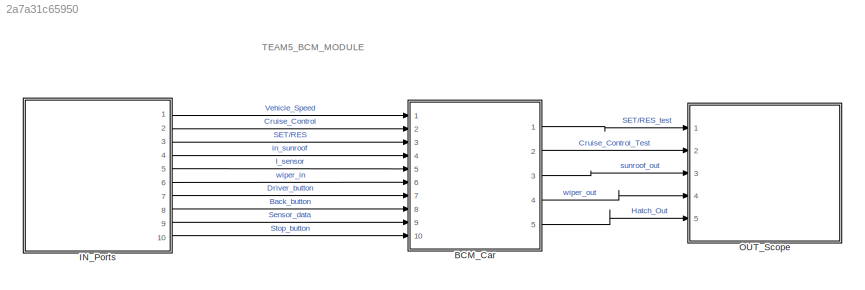
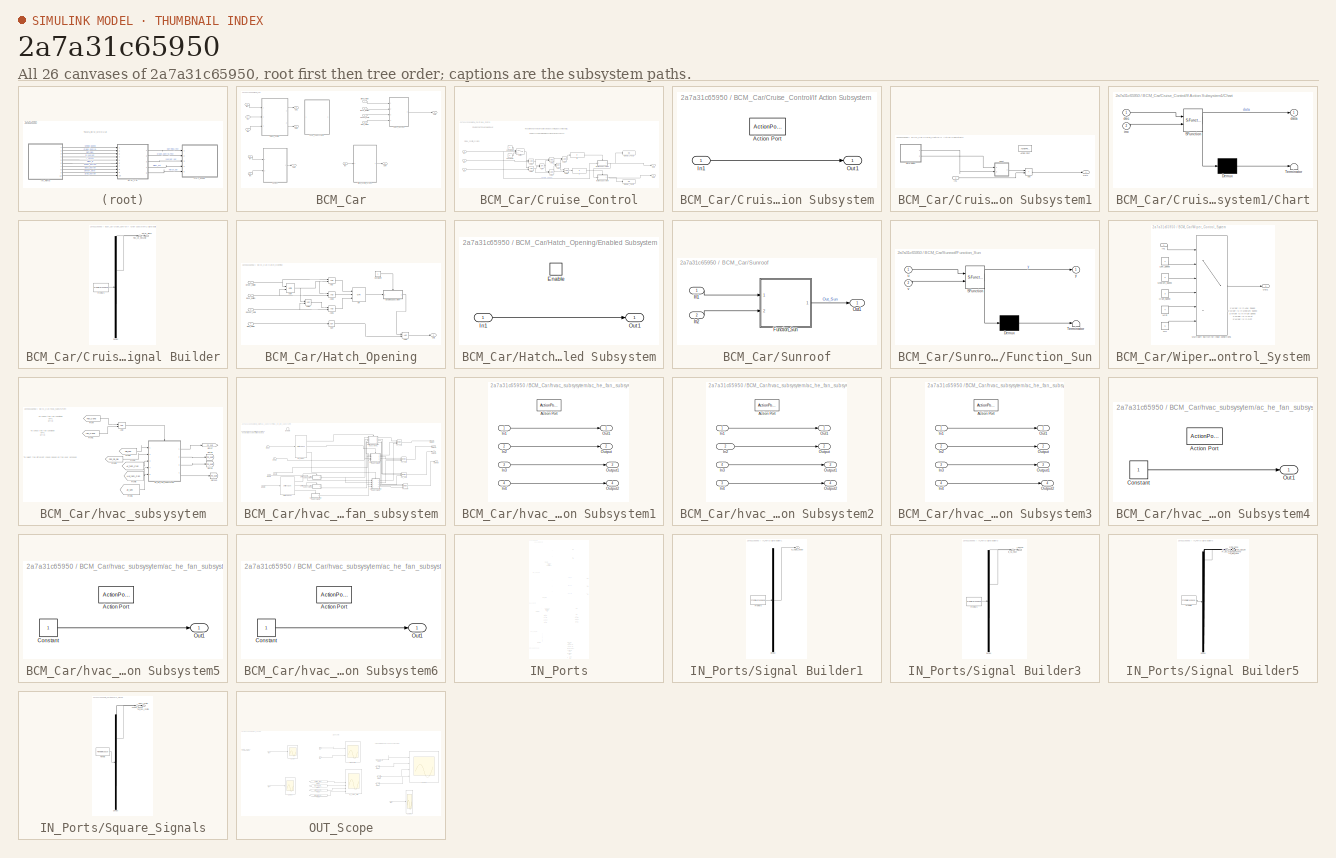
[diagram: thumbnail index - all 26 canvases of the model, root first then tree order]
MODEL slx_2a7a31c65950
KIND model
CONFIG AbsTol = auto
CONFIG EnableMultiTasking = off
CONFIG FixedStep = auto
CONFIG MaxStep = auto
CONFIG MinStep = auto
CONFIG RelTol = 1e-3
CONFIG SampleTimeConstraint = Unconstrained
CONFIG Solver = VariableStepAuto
CONFIG SolverName = VariableStepAuto
CONFIG StartTime = 0.0
CONFIG StopTime = 100
BLOCK [SubSystem] BCM_Car
  Ports = [10, 5]
  RequestExecContextInheritance = off
BLOCK [Inport] BCM_Car/Back_Button
  Port = 8
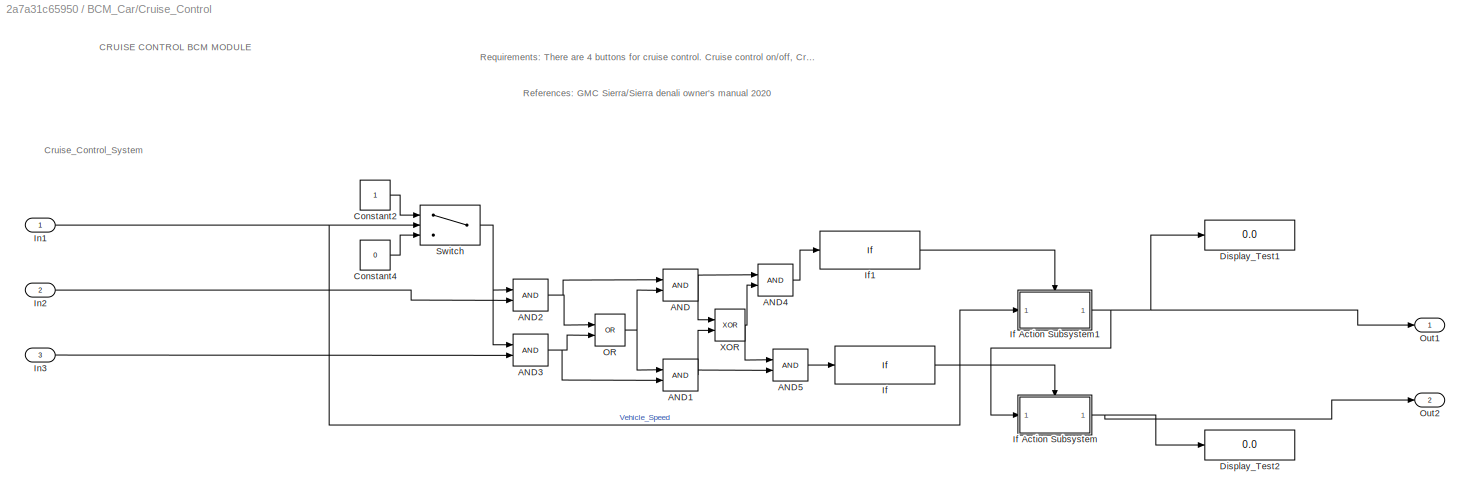
BLOCK [SubSystem] BCM_Car/Cruise_Control
  Ports = [3, 2]
  RequestExecContextInheritance = off
BLOCK [Logic] BCM_Car/Cruise_Control/AND
  AllPortsSameDT = off
  IconShape = distinctive
  OutDataTypeStr = boolean
  Ports = [2, 1]
BLOCK [Logic] BCM_Car/Cruise_Control/AND1
  AllPortsSameDT = off
  IconShape = distinctive
  OutDataTypeStr = boolean
  Ports = [2, 1]
BLOCK [Logic] BCM_Car/Cruise_Control/AND2
  AllPortsSameDT = off
  IconShape = distinctive
  OutDataTypeStr = boolean
  Ports = [2, 1]
BLOCK [Logic] BCM_Car/Cruise_Control/AND3
  AllPortsSameDT = off
  IconShape = distinctive
  OutDataTypeStr = boolean
  Ports = [2, 1]
BLOCK [Logic] BCM_Car/Cruise_Control/AND4
  AllPortsSameDT = off
  IconShape = distinctive
  OutDataTypeStr = boolean
  Ports = [2, 1]
BLOCK [Logic] BCM_Car/Cruise_Control/AND5
  AllPortsSameDT = off
  IconShape = distinctive
  OutDataTypeStr = boolean
  Ports = [2, 1]
BLOCK [Constant] BCM_Car/Cruise_Control/Constant2
BLOCK [Constant] BCM_Car/Cruise_Control/Constant4
  Value = 0
BLOCK [Display] BCM_Car/Cruise_Control/Display_Test1
  Decimation = 1
  Ports = [1]
BLOCK [Display] BCM_Car/Cruise_Control/Display_Test2
  Decimation = 1
  Ports = [1]
BLOCK [If] BCM_Car/Cruise_Control/If
  IfExpression = u1 == 1
  Ports = [1, 1]
  ShowElse = off
BLOCK [SubSystem] BCM_Car/Cruise_Control/If Action Subsystem
  Ports = [1, 1, 0, 0, 0, 0, 0, 1]
  RequestExecContextInheritance = off
  TreatAsAtomicUnit = on
BLOCK [ActionPort] BCM_Car/Cruise_Control/If Action Subsystem/Action Port
  ActionPortLabel = if(u1 == 1)
BLOCK [Inport] BCM_Car/Cruise_Control/If Action Subsystem/In1
BLOCK [Outport] BCM_Car/Cruise_Control/If Action Subsystem/Out1
BLOCK [SubSystem] BCM_Car/Cruise_Control/If Action Subsystem1
  Ports = [1, 1, 0, 0, 0, 0, 0, 1]
  RequestExecContextInheritance = off
  TreatAsAtomicUnit = on
BLOCK [ActionPort] BCM_Car/Cruise_Control/If Action Subsystem1/Action Port
  ActionPortLabel = if(u1 == 1)
BLOCK [Sum] BCM_Car/Cruise_Control/If Action Subsystem1/Add
  IconShape = rectangular
  Ports = [2, 1]
BLOCK [SubSystem] BCM_Car/Cruise_Control/If Action Subsystem1/Chart
  ErrorFcn = Stateflow.Translate.translate
  PermitHierarchicalResolution = ExplicitOnly
  Ports = [2, 1]
  RequestExecContextInheritance = off
  SFBlockType = Chart
  TreatAsAtomicUnit = on
BLOCK [Demux] BCM_Car/Cruise_Control/If Action Subsystem1/Chart/ Demux 
  Outputs = 1
  Ports = [1, 1]
BLOCK [S-Function] BCM_Car/Cruise_Control/If Action Subsystem1/Chart/ SFunction 
  EnableBusSupport = off
  FunctionName = sf_sfun
  PortCounts = [2 2]
  Ports = [2, 2]
  SFcnIsStateOwnerBlock = off
  SFunctionDeploymentMode = off
  Tag = Stateflow S-Function 1
BLOCK [Terminator] BCM_Car/Cruise_Control/If Action Subsystem1/Chart/ Terminator 
BLOCK [Outport] BCM_Car/Cruise_Control/If Action Subsystem1/Chart/data
BLOCK [Inport] BCM_Car/Cruise_Control/If Action Subsystem1/Chart/dec
BLOCK [Inport] BCM_Car/Cruise_Control/If Action Subsystem1/Chart/inc
  Port = 2
BLOCK [Inport] BCM_Car/Cruise_Control/If Action Subsystem1/In1
BLOCK [Outport] BCM_Car/Cruise_Control/If Action Subsystem1/Out1
BLOCK [SubSystem] BCM_Car/Cruise_Control/If Action Subsystem1/Signal Builder
  ClipboardFcn = sigbuilder_block('clipboard');
  CloseFcn = sigbuilder_block('close');
  ContinueFcn = sigbuilder_block('continue');
  CopyFcn = sigbuilder_block('copy');
  DeleteFcn = sigbuilder_block('delete');
  LoadFcn = sigbuilder_block('load');
  MaskHideContents = on
  ModelCloseFcn = sigbuilder_block('modelClose');
  NameChangeFcn = sigbuilder_block('namechange');
  OpenFcn = sigbuilder_block('open',[0.75 30.75 718.5 715.5 ]);
  PauseFcn = sigbuilder_block('pause');
  Ports = [0, 2]
  PreSaveFcn = sigbuilder_block('preSave');
  RequestExecContextInheritance = off
  StartFcn = sigbuilder_block('start');
  StopFcn = sigbuilder_block('stop');
  Tag = STV Subsys
BLOCK [Demux] BCM_Car/Cruise_Control/If Action Subsystem1/Signal Builder/Demux
  DisplayOption = none
  Outputs = 2
  Ports = [1, 2]
  Tag = STV Demux
BLOCK [FromWorkspace] BCM_Car/Cruise_Control/If Action Subsystem1/Signal Builder/FromWs
  Tag = STV FromWs
  VariableName = tuvar
BLOCK [Outport] BCM_Car/Cruise_Control/If Action Subsystem1/Signal Builder/Plus_Or_Resume
  Tag = STV Outport
BLOCK [Outport] BCM_Car/Cruise_Control/If Action Subsystem1/Signal Builder/Set_Or_Minus
  Port = 2
  Tag = STV Outport
BLOCK [If] BCM_Car/Cruise_Control/If1
  IfExpression = u1 == 1
  Ports = [1, 1]
  ShowElse = off
BLOCK [Inport] BCM_Car/Cruise_Control/In1
BLOCK [Inport] BCM_Car/Cruise_Control/In2
  Port = 2
BLOCK [Inport] BCM_Car/Cruise_Control/In3
  Port = 3
BLOCK [Logic] BCM_Car/Cruise_Control/OR
  AllPortsSameDT = off
  IconShape = distinctive
  Operator = OR
  OutDataTypeStr = boolean
  Ports = [2, 1]
BLOCK [Outport] BCM_Car/Cruise_Control/Out1
BLOCK [Outport] BCM_Car/Cruise_Control/Out2
  Port = 2
BLOCK [Switch] BCM_Car/Cruise_Control/Switch
  InputSameDT = off
  SaturateOnIntegerOverflow = off
  Threshold = 40
BLOCK [Logic] BCM_Car/Cruise_Control/XOR
  AllPortsSameDT = off
  IconShape = distinctive
  Operator = XOR
  OutDataTypeStr = boolean
  Ports = [2, 1]
BLOCK [Inport] BCM_Car/Driver_button
  Port = 7
BLOCK [SubSystem] BCM_Car/Hatch_Opening
  Ports = [4, 1]
  RequestExecContextInheritance = off
BLOCK [Logic] BCM_Car/Hatch_Opening/AND
  AllPortsSameDT = off
  IconShape = distinctive
  OutDataTypeStr = boolean
  Ports = [2, 1]
BLOCK [Logic] BCM_Car/Hatch_Opening/AND1
  AllPortsSameDT = off
  IconShape = distinctive
  OutDataTypeStr = boolean
  Ports = [2, 1]
BLOCK [Logic] BCM_Car/Hatch_Opening/AND2
  AllPortsSameDT = off
  IconShape = distinctive
  OutDataTypeStr = boolean
  Ports = [2, 1]
BLOCK [Logic] BCM_Car/Hatch_Opening/AND3
  AllPortsSameDT = off
  IconShape = distinctive
  OutDataTypeStr = boolean
  Ports = [2, 1]
BLOCK [Inport] BCM_Car/Hatch_Opening/Back_Button
  Port = 2
BLOCK [Constant] BCM_Car/Hatch_Opening/Constant4
BLOCK [Inport] BCM_Car/Hatch_Opening/Driver_button
BLOCK [SubSystem] BCM_Car/Hatch_Opening/Enabled Subsystem
  Ports = [1, 1, 1]
  RequestExecContextInheritance = off
  TreatAsAtomicUnit = on
BLOCK [EnablePort] BCM_Car/Hatch_Opening/Enabled Subsystem/Enable
  Ports = []
BLOCK [Inport] BCM_Car/Hatch_Opening/Enabled Subsystem/In1
BLOCK [Outport] BCM_Car/Hatch_Opening/Enabled Subsystem/Out1
BLOCK [Logic] BCM_Car/Hatch_Opening/NOT
  AllPortsSameDT = off
  IconShape = distinctive
  Operator = NOT
  OutDataTypeStr = boolean
  Ports = [1, 1]
BLOCK [Logic] BCM_Car/Hatch_Opening/OR
  AllPortsSameDT = off
  IconShape = distinctive
  Inputs = 3
  Operator = OR
  OutDataTypeStr = boolean
  Ports = [3, 1]
BLOCK [Outport] BCM_Car/Hatch_Opening/Out1
BLOCK [Inport] BCM_Car/Hatch_Opening/Senosr_data
  Port = 3
BLOCK [Inport] BCM_Car/Hatch_Opening/Stop_button
  Port = 4
BLOCK [Logic] BCM_Car/Hatch_Opening/XOR
  AllPortsSameDT = off
  IconShape = distinctive
  Operator = XOR
  OutDataTypeStr = boolean
  Ports = [2, 1]
BLOCK [Logic] BCM_Car/Hatch_Opening/XOR1
  AllPortsSameDT = off
  IconShape = distinctive
  Operator = XOR
  OutDataTypeStr = boolean
  Ports = [2, 1]
BLOCK [Inport] BCM_Car/In1
BLOCK [Inport] BCM_Car/In2
  Port = 2
BLOCK [Inport] BCM_Car/In3
  Port = 3
BLOCK [Inport] BCM_Car/In4
  Port = 4
BLOCK [Inport] BCM_Car/In5
  Port = 5
BLOCK [Inport] BCM_Car/In6
  Port = 6
BLOCK [Outport] BCM_Car/Out1
BLOCK [Outport] BCM_Car/Out2
  Port = 2
BLOCK [Outport] BCM_Car/Out3
  Port = 3
BLOCK [Outport] BCM_Car/Out4
  Port = 4
BLOCK [Outport] BCM_Car/Out5
  Port = 5
BLOCK [Inport] BCM_Car/Senosr_data
  Port = 9
BLOCK [Inport] BCM_Car/Stop_button
  Port = 10
BLOCK [SubSystem] BCM_Car/Sunroof
  Ports = [2, 1]
  RequestExecContextInheritance = off
BLOCK [SubSystem] BCM_Car/Sunroof/Function_Sun
  ErrorFcn = Stateflow.Translate.translate
  PermitHierarchicalResolution = ExplicitOnly
  Ports = [2, 1]
  RequestExecContextInheritance = off
  SFBlockType = MATLAB Function
  TreatAsAtomicUnit = on
BLOCK [Demux] BCM_Car/Sunroof/Function_Sun/ Demux 
  Outputs = 1
  Ports = [1, 1]
BLOCK [S-Function] BCM_Car/Sunroof/Function_Sun/ SFunction 
  EnableBusSupport = off
  FunctionName = sf_sfun
  PortCounts = [2 2]
  Ports = [2, 2]
  SFcnIsStateOwnerBlock = off
  SFunctionDeploymentMode = off
  Tag = Stateflow S-Function 3
BLOCK [Terminator] BCM_Car/Sunroof/Function_Sun/ Terminator 
BLOCK [Inport] BCM_Car/Sunroof/Function_Sun/u
BLOCK [Inport] BCM_Car/Sunroof/Function_Sun/v
  Port = 2
BLOCK [Outport] BCM_Car/Sunroof/Function_Sun/y
BLOCK [Inport] BCM_Car/Sunroof/In1
BLOCK [Inport] BCM_Car/Sunroof/In2
  Port = 2
BLOCK [Outport] BCM_Car/Sunroof/Out1
BLOCK [SubSystem] BCM_Car/Wiper_Control_System
  Ports = [1, 1]
  RequestExecContextInheritance = off
BLOCK [Constant] BCM_Car/Wiper_Control_System/High_Speed
  Value = 3
BLOCK [Inport] BCM_Car/Wiper_Control_System/In1
BLOCK [Constant] BCM_Car/Wiper_Control_System/Low_Speed
BLOCK [Constant] BCM_Car/Wiper_Control_System/Medium_Speed
  Value = 2
BLOCK [Constant] BCM_Car/Wiper_Control_System/Mist
  Value = 4
BLOCK [MultiPortSwitch] BCM_Car/Wiper_Control_System/Multiport Switch for input conditions
  DiagnosticForDefault = None
  InputSameDT = off
  Inputs = 5
  Ports = [6, 1]
  SaturateOnIntegerOverflow = off
BLOCK [Constant] BCM_Car/Wiper_Control_System/Off
  Value = 5
BLOCK [Outport] BCM_Car/Wiper_Control_System/Out1
BLOCK [SubSystem] BCM_Car/hvac_subsysytem
  Ports = []
  RequestExecContextInheritance = off
BLOCK [Logic] BCM_Car/hvac_subsysytem/AND
  AllPortsSameDT = off
  IconShape = distinctive
  OutDataTypeStr = boolean
  Ports = [2, 1]
BLOCK [From] BCM_Car/hvac_subsysytem/From
  GotoTag = Fan_Cond
  TagVisibility = global
BLOCK [From] BCM_Car/hvac_subsysytem/From1
  GotoTag = Ign_Cond
  TagVisibility = global
BLOCK [From] BCM_Car/hvac_subsysytem/From2
  GotoTag = Sel_cas
  TagVisibility = global
BLOCK [From] BCM_Car/hvac_subsysytem/From3
  GotoTag = Fan_Sp_Sel
  TagVisibility = global
BLOCK [From] BCM_Car/hvac_subsysytem/From4
  GotoTag = Ac_tem_Con
  TagVisibility = global
BLOCK [From] BCM_Car/hvac_subsysytem/From5
  GotoTag = He_tem_Con
  TagVisibility = global
BLOCK [From] BCM_Car/hvac_subsysytem/From6
  GotoTag = Air_Ven
  TagVisibility = global
BLOCK [Goto] BCM_Car/hvac_subsysytem/Goto10
  GotoTag = Po_out4
  TagVisibility = global
BLOCK [Goto] BCM_Car/hvac_subsysytem/Goto7
  GotoTag = Po_out1
  TagVisibility = global
BLOCK [Goto] BCM_Car/hvac_subsysytem/Goto8
  GotoTag = Po_out2
  TagVisibility = global
BLOCK [Goto] BCM_Car/hvac_subsysytem/Goto9
  GotoTag = Po_out3
  TagVisibility = global
BLOCK [SubSystem] BCM_Car/hvac_subsysytem/ac_he_fan_subsystem
  Ports = [5, 4, 1]
  RequestExecContextInheritance = off
BLOCK [EnablePort] BCM_Car/hvac_subsysytem/ac_he_fan_subsystem/Enable
  Ports = []
BLOCK [Inport] BCM_Car/hvac_subsysytem/ac_he_fan_subsystem/Input
BLOCK [Inport] BCM_Car/hvac_subsysytem/ac_he_fan_subsystem/Input1
  Port = 2
BLOCK [Inport] BCM_Car/hvac_subsysytem/ac_he_fan_subsystem/Input2
  Port = 3
BLOCK [Inport] BCM_Car/hvac_subsysytem/ac_he_fan_subsystem/Input3
  Port = 4
BLOCK [Inport] BCM_Car/hvac_subsysytem/ac_he_fan_subsystem/Input4
  Port = 5
BLOCK [Outport] BCM_Car/hvac_subsysytem/ac_he_fan_subsystem/Output
  IconDisplay = Port number and signal name
BLOCK [Outport] BCM_Car/hvac_subsysytem/ac_he_fan_subsystem/Output1
  IconDisplay = Port number and signal name
  Port = 2
BLOCK [Outport] BCM_Car/hvac_subsysytem/ac_he_fan_subsystem/Output2
  Port = 3
BLOCK [Outport] BCM_Car/hvac_subsysytem/ac_he_fan_subsystem/Output3
  Port = 4
BLOCK [Merge] BCM_Car/hvac_subsysytem/ac_he_fan_subsystem/Po_out1
  Inputs = 3
  Ports = [3, 1]
BLOCK [Merge] BCM_Car/hvac_subsysytem/ac_he_fan_subsystem/Po_out2
  Inputs = 3
  Ports = [3, 1]
BLOCK [Merge] BCM_Car/hvac_subsysytem/ac_he_fan_subsystem/Po_out3
  Inputs = 3
  Ports = [3, 1]
BLOCK [Merge] BCM_Car/hvac_subsysytem/ac_he_fan_subsystem/Po_out4
  Inputs = 3
  Ports = [3, 1]
BLOCK [SwitchCase] BCM_Car/hvac_subsysytem/ac_he_fan_subsystem/Sel_which 
  CaseConditions = {1,2,3}
  Ports = [1, 3]
  ShowDefaultCase = off
BLOCK [SubSystem] BCM_Car/hvac_subsysytem/ac_he_fan_subsystem/Switch Case Action Subsystem1
  Ports = [4, 4, 0, 0, 0, 0, 0, 1]
  RequestExecContextInheritance = off
  TreatAsAtomicUnit = on
BLOCK [ActionPort] BCM_Car/hvac_subsysytem/ac_he_fan_subsystem/Switch Case Action Subsystem1/Action Port
  ActionPortLabel = case [ 1 ]:
BLOCK [Inport] BCM_Car/hvac_subsysytem/ac_he_fan_subsystem/Switch Case Action Subsystem1/In1
BLOCK [Inport] BCM_Car/hvac_subsysytem/ac_he_fan_subsystem/Switch Case Action Subsystem1/In2
  Port = 2
BLOCK [Inport] BCM_Car/hvac_subsysytem/ac_he_fan_subsystem/Switch Case Action Subsystem1/In3
  Port = 3
BLOCK [Inport] BCM_Car/hvac_subsysytem/ac_he_fan_subsystem/Switch Case Action Subsystem1/In4
  Port = 4
BLOCK [Outport] BCM_Car/hvac_subsysytem/ac_he_fan_subsystem/Switch Case Action Subsystem1/Out1
BLOCK [Outport] BCM_Car/hvac_subsysytem/ac_he_fan_subsystem/Switch Case Action Subsystem1/Output
  Port = 2
BLOCK [Outport] BCM_Car/hvac_subsysytem/ac_he_fan_subsystem/Switch Case Action Subsystem1/Output1
  Port = 3
BLOCK [Outport] BCM_Car/hvac_subsysytem/ac_he_fan_subsystem/Switch Case Action Subsystem1/Output2
  Port = 4
BLOCK [SubSystem] BCM_Car/hvac_subsysytem/ac_he_fan_subsystem/Switch Case Action Subsystem2
  Ports = [4, 4, 0, 0, 0, 0, 0, 1]
  RequestExecContextInheritance = off
  TreatAsAtomicUnit = on
BLOCK [ActionPort] BCM_Car/hvac_subsysytem/ac_he_fan_subsystem/Switch Case Action Subsystem2/Action Port
  ActionPortLabel = case [ 2 ]:
BLOCK [Inport] BCM_Car/hvac_subsysytem/ac_he_fan_subsystem/Switch Case Action Subsystem2/In1
BLOCK [Inport] BCM_Car/hvac_subsysytem/ac_he_fan_subsystem/Switch Case Action Subsystem2/In2
  Port = 2
BLOCK [Inport] BCM_Car/hvac_subsysytem/ac_he_fan_subsystem/Switch Case Action Subsystem2/In3
  Port = 4
BLOCK [Inport] BCM_Car/hvac_subsysytem/ac_he_fan_subsystem/Switch Case Action Subsystem2/In4
  Port = 3
BLOCK [Outport] BCM_Car/hvac_subsysytem/ac_he_fan_subsystem/Switch Case Action Subsystem2/Out1
BLOCK [Outport] BCM_Car/hvac_subsysytem/ac_he_fan_subsystem/Switch Case Action Subsystem2/Output
  Port = 2
BLOCK [Outport] BCM_Car/hvac_subsysytem/ac_he_fan_subsystem/Switch Case Action Subsystem2/Output1
  Port = 3
BLOCK [Outport] BCM_Car/hvac_subsysytem/ac_he_fan_subsystem/Switch Case Action Subsystem2/Output2
  Port = 4
BLOCK [SubSystem] BCM_Car/hvac_subsysytem/ac_he_fan_subsystem/Switch Case Action Subsystem3
  Ports = [4, 4, 0, 0, 0, 0, 0, 1]
  RequestExecContextInheritance = off
  TreatAsAtomicUnit = on
BLOCK [ActionPort] BCM_Car/hvac_subsysytem/ac_he_fan_subsystem/Switch Case Action Subsystem3/Action Port
  ActionPortLabel = case [ 3 ]:
BLOCK [Inport] BCM_Car/hvac_subsysytem/ac_he_fan_subsystem/Switch Case Action Subsystem3/In1
BLOCK [Inport] BCM_Car/hvac_subsysytem/ac_he_fan_subsystem/Switch Case Action Subsystem3/In2
  Port = 2
BLOCK [Inport] BCM_Car/hvac_subsysytem/ac_he_fan_subsystem/Switch Case Action Subsystem3/In3
  Port = 3
BLOCK [Inport] BCM_Car/hvac_subsysytem/ac_he_fan_subsystem/Switch Case Action Subsystem3/In4
  Port = 4
BLOCK [Outport] BCM_Car/hvac_subsysytem/ac_he_fan_subsystem/Switch Case Action Subsystem3/Out1
BLOCK [Outport] BCM_Car/hvac_subsysytem/ac_he_fan_subsystem/Switch Case Action Subsystem3/Output
  Port = 2
BLOCK [Outport] BCM_Car/hvac_subsysytem/ac_he_fan_subsystem/Switch Case Action Subsystem3/Output1
  Port = 3
BLOCK [Outport] BCM_Car/hvac_subsysytem/ac_he_fan_subsystem/Switch Case Action Subsystem3/Output2
  Port = 4
BLOCK [SubSystem] BCM_Car/hvac_subsysytem/ac_he_fan_subsystem/Switch Case Action Subsystem4
  Ports = [0, 1, 0, 0, 0, 0, 0, 1]
  RequestExecContextInheritance = off
  TreatAsAtomicUnit = on
BLOCK [ActionPort] BCM_Car/hvac_subsysytem/ac_he_fan_subsystem/Switch Case Action Subsystem4/Action Port
  ActionPortLabel = case [ 1 ]:
BLOCK [Constant] BCM_Car/hvac_subsysytem/ac_he_fan_subsystem/Switch Case Action Subsystem4/Constant
BLOCK [Outport] BCM_Car/hvac_subsysytem/ac_he_fan_subsystem/Switch Case Action Subsystem4/Out1
BLOCK [SubSystem] BCM_Car/hvac_subsysytem/ac_he_fan_subsystem/Switch Case Action Subsystem5
  Ports = [0, 1, 0, 0, 0, 0, 0, 1]
  RequestExecContextInheritance = off
  TreatAsAtomicUnit = on
BLOCK [ActionPort] BCM_Car/hvac_subsysytem/ac_he_fan_subsystem/Switch Case Action Subsystem5/Action Port
  ActionPortLabel = case [ 2 ]:
BLOCK [Constant] BCM_Car/hvac_subsysytem/ac_he_fan_subsystem/Switch Case Action Subsystem5/Constant
BLOCK [Outport] BCM_Car/hvac_subsysytem/ac_he_fan_subsystem/Switch Case Action Subsystem5/Out1
BLOCK [SubSystem] BCM_Car/hvac_subsysytem/ac_he_fan_subsystem/Switch Case Action Subsystem6
  Ports = [0, 1, 0, 0, 0, 0, 0, 1]
  RequestExecContextInheritance = off
  TreatAsAtomicUnit = on
BLOCK [ActionPort] BCM_Car/hvac_subsysytem/ac_he_fan_subsystem/Switch Case Action Subsystem6/Action Port
  ActionPortLabel = case [ 3 ]:
BLOCK [Constant] BCM_Car/hvac_subsysytem/ac_he_fan_subsystem/Switch Case Action Subsystem6/Constant
BLOCK [Outport] BCM_Car/hvac_subsysytem/ac_he_fan_subsystem/Switch Case Action Subsystem6/Out1
BLOCK [SwitchCase] BCM_Car/hvac_subsysytem/ac_he_fan_subsystem/Switch Case1
  CaseConditions = {1,2,3}
  Ports = [1, 3]
  ShowDefaultCase = off
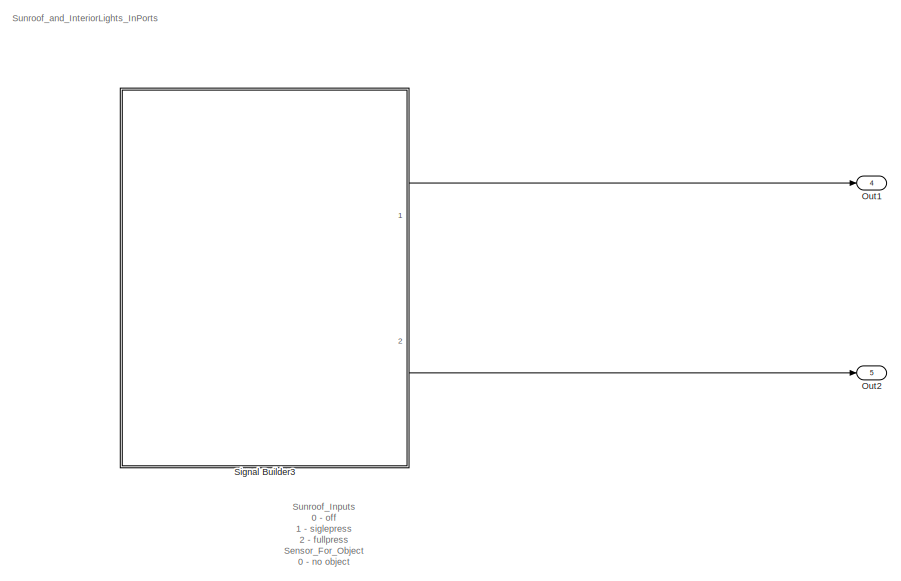
[diagram: IN_Ports - part 1/4, top center region]
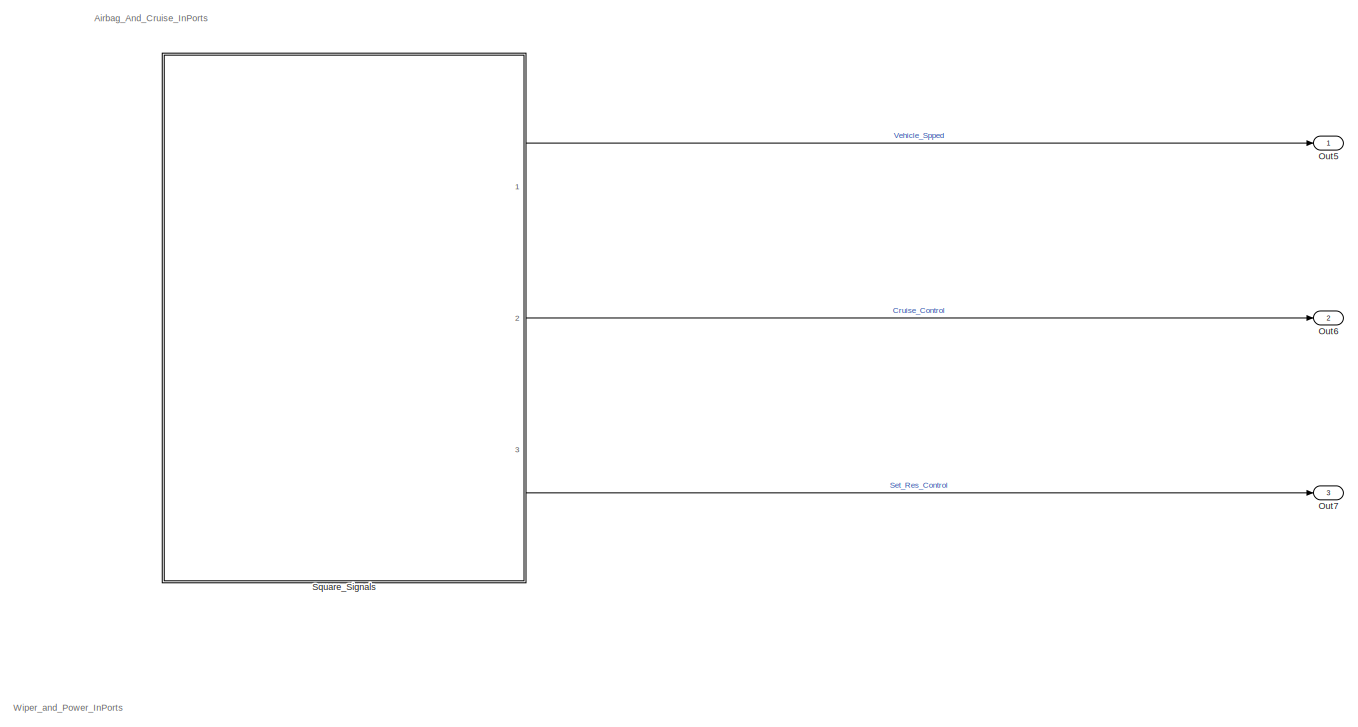
[diagram: IN_Ports - part 2/4, full width, middle band]
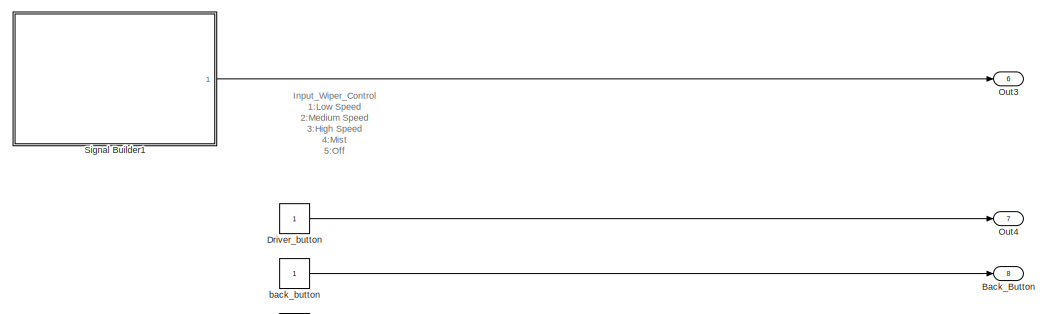
[diagram: IN_Ports - part 3/4, full width, middle band]
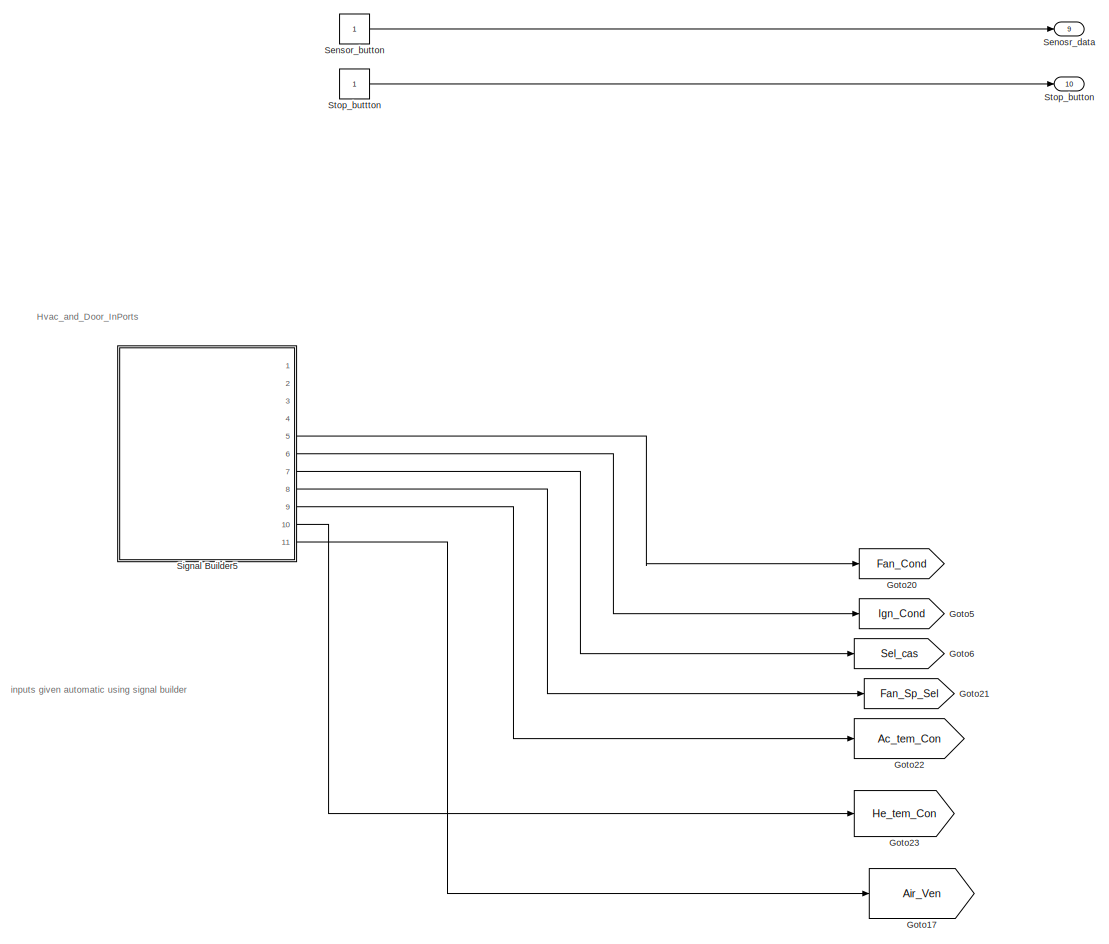
[diagram: IN_Ports - part 4/4, full width, bottom band]
BLOCK [SubSystem] IN_Ports
  Ports = [0, 10]
  RequestExecContextInheritance = off
BLOCK [Outport] IN_Ports/Back_Button
  Port = 8
BLOCK [Constant] IN_Ports/Driver_button
BLOCK [Goto] IN_Ports/Goto17
  GotoTag = Air_Ven
  TagVisibility = global
BLOCK [Goto] IN_Ports/Goto20
  GotoTag = Fan_Cond
  TagVisibility = global
BLOCK [Goto] IN_Ports/Goto21
  GotoTag = Fan_Sp_Sel
  TagVisibility = global
BLOCK [Goto] IN_Ports/Goto22
  GotoTag = Ac_tem_Con
  TagVisibility = global
BLOCK [Goto] IN_Ports/Goto23
  GotoTag = He_tem_Con
  TagVisibility = global
BLOCK [Goto] IN_Ports/Goto5
  GotoTag = Ign_Cond
  TagVisibility = global
BLOCK [Goto] IN_Ports/Goto6
  GotoTag = Sel_cas
  TagVisibility = global
BLOCK [Outport] IN_Ports/Out1
  Port = 4
BLOCK [Outport] IN_Ports/Out2
  Port = 5
BLOCK [Outport] IN_Ports/Out3
  Port = 6
BLOCK [Outport] IN_Ports/Out4
  Port = 7
BLOCK [Outport] IN_Ports/Out5
BLOCK [Outport] IN_Ports/Out6
  Port = 2
BLOCK [Outport] IN_Ports/Out7
  Port = 3
BLOCK [Outport] IN_Ports/Senosr_data
  Port = 9
BLOCK [Constant] IN_Ports/Sensor_button
BLOCK [SubSystem] IN_Ports/Signal Builder1
  ClipboardFcn = sigbuilder_block('clipboard');
  CloseFcn = sigbuilder_block('close');
  ContinueFcn = sigbuilder_block('continue');
  CopyFcn = sigbuilder_block('copy');
  DeleteFcn = sigbuilder_block('delete');
  LoadFcn = sigbuilder_block('load');
  MaskHideContents = on
  ModelCloseFcn = sigbuilder_block('modelClose');
  NameChangeFcn = sigbuilder_block('namechange');
  OpenFcn = sigbuilder_block('open',[0.75 30.75 718.5 715.5 ]);
  PauseFcn = sigbuilder_block('pause');
  Ports = [0, 1]
  PreSaveFcn = sigbuilder_block('preSave');
  RequestExecContextInheritance = off
  StartFcn = sigbuilder_block('start');
  StopFcn = sigbuilder_block('stop');
  Tag = STV Subsys
BLOCK [Demux] IN_Ports/Signal Builder1/Demux
  DisplayOption = none
  Outputs = 1
  Ports = [1, 1]
  Tag = STV Demux
BLOCK [FromWorkspace] IN_Ports/Signal Builder1/FromWs
  Tag = STV FromWs
  VariableName = tuvar
BLOCK [Outport] IN_Ports/Signal Builder1/In_Value_Wiper
  Tag = STV Outport
BLOCK [SubSystem] IN_Ports/Signal Builder3
  ClipboardFcn = sigbuilder_block('clipboard');
  CloseFcn = sigbuilder_block('close');
  ContinueFcn = sigbuilder_block('continue');
  CopyFcn = sigbuilder_block('copy');
  DeleteFcn = sigbuilder_block('delete');
  LoadFcn = sigbuilder_block('load');
  MaskHideContents = on
  ModelCloseFcn = sigbuilder_block('modelClose');
  NameChangeFcn = sigbuilder_block('namechange');
  OpenFcn = sigbuilder_block('open',[591 352.5 550.5 359.25 ]);
  PauseFcn = sigbuilder_block('pause');
  Ports = [0, 2]
  PreSaveFcn = sigbuilder_block('preSave');
  RequestExecContextInheritance = off
  StartFcn = sigbuilder_block('start');
  StopFcn = sigbuilder_block('stop');
  Tag = STV Subsys
BLOCK [Demux] IN_Ports/Signal Builder3/Demux
  DisplayOption = none
  Outputs = 2
  Ports = [1, 2]
  Tag = STV Demux
BLOCK [FromWorkspace] IN_Ports/Signal Builder3/FromWs
  Tag = STV FromWs
  VariableName = tuvar
BLOCK [Outport] IN_Ports/Signal Builder3/I_Sensor
  Port = 2
  Tag = STV Outport
BLOCK [Outport] IN_Ports/Signal Builder3/In_Su_Roof
  Tag = STV Outport
BLOCK [SubSystem] IN_Ports/Signal Builder5
  ClipboardFcn = sigbuilder_block('clipboard');
  CloseFcn = sigbuilder_block('close');
  ContinueFcn = sigbuilder_block('continue');
  CopyFcn = sigbuilder_block('copy');
  DeleteFcn = sigbuilder_block('delete');
  LoadFcn = sigbuilder_block('load');
  MaskHideContents = on
  ModelCloseFcn = sigbuilder_block('modelClose');
  NameChangeFcn = sigbuilder_block('namechange');
  OpenFcn = sigbuilder_block('open',[544.5 115.5 550.5 399.75 ]);
  PauseFcn = sigbuilder_block('pause');
  Ports = [0, 11]
  PreSaveFcn = sigbuilder_block('preSave');
  RequestExecContextInheritance = off
  StartFcn = sigbuilder_block('start');
  StopFcn = sigbuilder_block('stop');
  Tag = STV Subsys
BLOCK [Outport] IN_Ports/Signal Builder5/AIr_Ven
  Port = 11
  Tag = STV Outport
BLOCK [Outport] IN_Ports/Signal Builder5/Ac_tem_Con
  Port = 9
  Tag = STV Outport
BLOCK [Outport] IN_Ports/Signal Builder5/Bl_Do_Cond
  Port = 3
  Tag = STV Outport
BLOCK [Outport] IN_Ports/Signal Builder5/Br_Do_Cond
  Port = 4
  Tag = STV Outport
BLOCK [Demux] IN_Ports/Signal Builder5/Demux
  DisplayOption = none
  Outputs = 11
  Ports = [1, 11]
  Tag = STV Demux
BLOCK [Outport] IN_Ports/Signal Builder5/Fan_Cond
  Port = 5
  Tag = STV Outport
BLOCK [Outport] IN_Ports/Signal Builder5/Fan_Sp_Sel
  Port = 8
  Tag = STV Outport
BLOCK [Outport] IN_Ports/Signal Builder5/Fl_Do_Cond
  Port = 2
  Tag = STV Outport
BLOCK [Outport] IN_Ports/Signal Builder5/Fr_Do_Cond
  Tag = STV Outport
BLOCK [FromWorkspace] IN_Ports/Signal Builder5/FromWs
  Tag = STV FromWs
  VariableName = tuvar
BLOCK [Outport] IN_Ports/Signal Builder5/He_tem_Con
  Port = 10
  Tag = STV Outport
BLOCK [Outport] IN_Ports/Signal Builder5/Ign_Cond
  Port = 6
  Tag = STV Outport
BLOCK [Outport] IN_Ports/Signal Builder5/Sel_cas
  Port = 7
  Tag = STV Outport
BLOCK [SubSystem] IN_Ports/Square_Signals
  ClipboardFcn = sigbuilder_block('clipboard');
  CloseFcn = sigbuilder_block('close');
  ContinueFcn = sigbuilder_block('continue');
  CopyFcn = sigbuilder_block('copy');
  DeleteFcn = sigbuilder_block('delete');
  LoadFcn = sigbuilder_block('load');
  MaskHideContents = on
  ModelCloseFcn = sigbuilder_block('modelClose');
  NameChangeFcn = sigbuilder_block('namechange');
  OpenFcn = sigbuilder_block('open',[6 30 1012.5 447.75 ]);
  PauseFcn = sigbuilder_block('pause');
  Ports = [0, 3]
  PreSaveFcn = sigbuilder_block('preSave');
  RequestExecContextInheritance = off
  StartFcn = sigbuilder_block('start');
  StopFcn = sigbuilder_block('stop');
  Tag = STV Subsys
BLOCK [Outport] IN_Ports/Square_Signals/Cruise_Control
  Port = 2
  Tag = STV Outport
BLOCK [Demux] IN_Ports/Square_Signals/Demux
  DisplayOption = none
  Outputs = 3
  Ports = [1, 3]
  Tag = STV Demux
BLOCK [FromWorkspace] IN_Ports/Square_Signals/FromWs
  Tag = STV FromWs
  VariableName = tuvar
BLOCK [Outport] IN_Ports/Square_Signals/Set_Res_Control
  Port = 3
  Tag = STV Outport
BLOCK [Outport] IN_Ports/Square_Signals/Vehicle_Speed
  Tag = STV Outport
BLOCK [Outport] IN_Ports/Stop_button
  Port = 10
BLOCK [Constant] IN_Ports/Stop_buttton
BLOCK [Constant] IN_Ports/back_button
BLOCK [SubSystem] OUT_Scope
  Ports = [5]
  RequestExecContextInheritance = off
BLOCK [Scope] OUT_Scope/CruiseControl
  Floating = off
  NumInputPorts = 2
  Ports = [2]
  ScopeSpecificationString = Simulink.scopes.TimeScopeBlockCfg('CurrentConfiguration', extmgr.ConfigurationSet(extmgr.Configuration('Core','General UI',true),extmgr.Configuration('Core','Source UI',true),extmgr.Configuration('Sources','WiredSimulink',true,'DataLoggingVariableName','ScopeData1'),extmgr.Configuration('Visuals','Time Domain',true,'SerializedDisplays',{struct('MinYLimReal','-0.125','MaxYLimReal','1.125','YLabelRe...<+2771ch>
BLOCK [From] OUT_Scope/From14
  GotoTag = Hatch_button
  TagVisibility = global
BLOCK [From] OUT_Scope/From15
  GotoTag = Hatch_scope
  TagVisibility = global
BLOCK [From] OUT_Scope/From16
  GotoTag = Bonnet_scope
  TagVisibility = global
BLOCK [From] OUT_Scope/From17
  GotoTag = Bonnet_Button
  TagVisibility = global
BLOCK [From] OUT_Scope/From20
  GotoTag = Po_out4
  TagVisibility = global
BLOCK [From] OUT_Scope/From23
  GotoTag = Po_out1
  TagVisibility = global
BLOCK [From] OUT_Scope/From24
  GotoTag = Po_out2
  TagVisibility = global
BLOCK [From] OUT_Scope/From25
  GotoTag = Po_out3
  TagVisibility = global
BLOCK [Inport] OUT_Scope/In1
BLOCK [Inport] OUT_Scope/In2
  Port = 2
BLOCK [Inport] OUT_Scope/In3
  Port = 3
BLOCK [Inport] OUT_Scope/In4
  Port = 4
BLOCK [Inport] OUT_Scope/In5
  Port = 5
BLOCK [Scope] OUT_Scope/O_P_Hatch_Alarm
  Floating = off
  NumInputPorts = 8
  Ports = [8]
  ScopeSpecificationString = Simulink.scopes.TimeScopeBlockCfg('CurrentConfiguration', extmgr.ConfigurationSet(extmgr.Configuration('Core','General UI',true),extmgr.Configuration('Core','Source UI',true),extmgr.Configuration('Sources','WiredSimulink',true,'DataLoggingVariableName','ScopeData5'),extmgr.Configuration('Visuals','Time Domain',true,'SerializedDisplays',{struct('MinYLimReal','-0.09415','MaxYLimReal','1.07772','YLab...<+6267ch>
BLOCK [Scope] OUT_Scope/Scope
  Floating = off
  NumInputPorts = 1
  Ports = [1]
  ScopeSpecificationString = Simulink.scopes.TimeScopeBlockCfg('CurrentConfiguration', extmgr.ConfigurationSet(extmgr.Configuration('Core','General UI',true),extmgr.Configuration('Core','Source UI',true),extmgr.Configuration('Sources','WiredSimulink',true,'DataLoggingVariableName','ScopeData4'),extmgr.Configuration('Visuals','Time Domain',true,'SerializedDisplays',{struct('MinYLimReal','-1.875','MaxYLimReal','16.62265','YLabe...<+1461ch>
BLOCK [Scope] OUT_Scope/Scope1
  Floating = off
  NumInputPorts = 1
  Ports = [1]
  ScopeSpecificationString = Simulink.scopes.TimeScopeBlockCfg('CurrentConfiguration', extmgr.ConfigurationSet(extmgr.Configuration('Core','General UI',true),extmgr.Configuration('Core','Source UI',true),extmgr.Configuration('Sources','WiredSimulink',true,'DataLoggingVariableName','ScopeData1'),extmgr.Configuration('Visuals','Time Domain',true),extmgr.Configuration('Tools','Plot Navigation',true),extmgr.Configuration('Tools',...<+40ch>
BLOCK [Scope] OUT_Scope/Scope2
  Floating = off
  NumInputPorts = 1
  Ports = [1]
  ScopeSpecificationString = Simulink.scopes.TimeScopeBlockCfg('CurrentConfiguration', extmgr.ConfigurationSet(extmgr.Configuration('Core','General UI',true),extmgr.Configuration('Core','Source UI',true),extmgr.Configuration('Sources','WiredSimulink',true,'DataLoggingVariableName','ScopeData2'),extmgr.Configuration('Visuals','Time Domain',true,'SerializedDisplays',{struct('MinYLimReal','0.5','MaxYLimReal','5.5','YLabelReal','...<+1390ch>
BLOCK [Scope] OUT_Scope/Scope4
  Floating = off
  NumInputPorts = 4
  Ports = [4]
  ScopeSpecificationString = Simulink.scopes.TimeScopeBlockCfg('CurrentConfiguration', extmgr.ConfigurationSet(extmgr.Configuration('Core','General UI',true),extmgr.Configuration('Core','Source UI',true),extmgr.Configuration('Sources','WiredSimulink',true,'DataLoggingVariableName','ScopeData6'),extmgr.Configuration('Visuals','Time Domain',true,'SerializedDisplays',{struct('MinYLimReal','-0.125','MaxYLimReal','1.125','YLabelRe...<+6366ch>
ANNOTATION (root): TEAM5_BCM_MODULE
ANNOTATION BCM_Car/Cruise_Control: CRUISE CONTROL BCM MODULE
ANNOTATION BCM_Car/Cruise_Control: References: GMC Sierra/Sierra denali owner's manual 2020
ANNOTATION BCM_Car/Cruise_Control: Requirements: There are 4 buttons for cruise control. Cruise control on/off, Cruise with SET/RES on/off, SET- and +RES.
ANNOTATION BCM_Car/Cruise_Control: Cruise_Control_System
ANNOTATION BCM_Car/Wiper_Control_System: 1:Wiper is in Low Speed 2:Wiper is in Medium Speed 3:Wiper is in High Speed 4:Wiper is in Mist 5:Wiper is in OFF
ANNOTATION BCM_Car/hvac_subsysytem: To check the fan condition on=1 off=0
ANNOTATION BCM_Car/hvac_subsysytem: To select the different cases based on the user accesed
ANNOTATION BCM_Car/hvac_subsysytem/ac_he_fan_subsystem: The inputs which do differetn operations input ports takes to the different outputs
ANNOTATION IN_Ports: Sunroof_Inputs 0 - off 1 - siglepress 2 - fullpress Sensor_For_Object 0 - no object 1 - object
ANNOTATION IN_Ports: Airbag_And_Cruise_InPorts
ANNOTATION IN_Ports: Hvac_and_Door_InPorts
ANNOTATION IN_Ports: Input_Wiper_Control 1:Low Speed 2:Medium Speed 3:High Speed 4:Mist 5:Off
ANNOTATION IN_Ports: Sunroof_and_InteriorLights_InPorts
ANNOTATION IN_Ports: Wiper_and_Power_InPorts
ANNOTATION IN_Ports: inputs given automatic using signal builder
ANNOTATION OUT_Scope: Cruise control
ANNOTATION OUT_Scope: Outputs_Sunroof 1-15 : movement
ANNOTATION OUT_Scope: outputs that are given to scope to check the outputs
LINE BCM_Car/Back_Button:1 -> BCM_Car/Hatch_Opening:2
NET BCM_Car/Cruise_Control/AND1:1 -> BCM_Car/Cruise_Control/AND5:2, BCM_Car/Cruise_Control/XOR:2
NET BCM_Car/Cruise_Control/AND2:1 -> BCM_Car/Cruise_Control/AND:1, BCM_Car/Cruise_Control/OR:1
NET BCM_Car/Cruise_Control/AND3:1 -> BCM_Car/Cruise_Control/AND1:2, BCM_Car/Cruise_Control/OR:2
LINE BCM_Car/Cruise_Control/AND4:1 -> BCM_Car/Cruise_Control/If1:1
LINE BCM_Car/Cruise_Control/AND5:1 -> BCM_Car/Cruise_Control/If:1
NET BCM_Car/Cruise_Control/AND:1 -> BCM_Car/Cruise_Control/AND4:1, BCM_Car/Cruise_Control/XOR:1
LINE BCM_Car/Cruise_Control/Constant2:1 -> BCM_Car/Cruise_Control/Switch:1
LINE BCM_Car/Cruise_Control/Constant4:1 -> BCM_Car/Cruise_Control/Switch:3
LINE BCM_Car/Cruise_Control/If Action Subsystem/In1:1 -> BCM_Car/Cruise_Control/If Action Subsystem/Out1:1
LINE BCM_Car/Cruise_Control/If Action Subsystem1/Add:1 -> BCM_Car/Cruise_Control/If Action Subsystem1/Out1:1
LINE BCM_Car/Cruise_Control/If Action Subsystem1/Chart:1 -> BCM_Car/Cruise_Control/If Action Subsystem1/Add:1
LINE BCM_Car/Cruise_Control/If Action Subsystem1/In1:1 -> BCM_Car/Cruise_Control/If Action Subsystem1/Add:2
LINE BCM_Car/Cruise_Control/If Action Subsystem1/Signal Builder:1 -> BCM_Car/Cruise_Control/If Action Subsystem1/Chart:2
LINE BCM_Car/Cruise_Control/If Action Subsystem1/Signal Builder:2 -> BCM_Car/Cruise_Control/If Action Subsystem1/Chart:1
NET BCM_Car/Cruise_Control/If Action Subsystem1:1 -> BCM_Car/Cruise_Control/Display_Test1:1, BCM_Car/Cruise_Control/If Action Subsystem:1, BCM_Car/Cruise_Control/Out1:1
NET BCM_Car/Cruise_Control/If Action Subsystem:1 -> BCM_Car/Cruise_Control/Display_Test2:1, BCM_Car/Cruise_Control/Out2:1
LINE BCM_Car/Cruise_Control/If1:1 -> BCM_Car/Cruise_Control/If Action Subsystem1:ifaction
LINE BCM_Car/Cruise_Control/If:1 -> BCM_Car/Cruise_Control/If Action Subsystem:ifaction
NET BCM_Car/Cruise_Control/In1:1 -> BCM_Car/Cruise_Control/If Action Subsystem1:1, BCM_Car/Cruise_Control/Switch:2
LINE BCM_Car/Cruise_Control/In2:1 -> BCM_Car/Cruise_Control/AND2:2
LINE BCM_Car/Cruise_Control/In3:1 -> BCM_Car/Cruise_Control/AND3:2
NET BCM_Car/Cruise_Control/OR:1 -> BCM_Car/Cruise_Control/AND1:1, BCM_Car/Cruise_Control/AND:2
NET BCM_Car/Cruise_Control/Switch:1 -> BCM_Car/Cruise_Control/AND2:1, BCM_Car/Cruise_Control/AND3:1
NET BCM_Car/Cruise_Control/XOR:1 -> BCM_Car/Cruise_Control/AND4:2, BCM_Car/Cruise_Control/AND5:1
LINE BCM_Car/Cruise_Control:1 -> BCM_Car/Out1:1
LINE BCM_Car/Cruise_Control:2 -> BCM_Car/Out2:1
LINE BCM_Car/Driver_button:1 -> BCM_Car/Hatch_Opening:1
LINE BCM_Car/Hatch_Opening/AND1:1 -> BCM_Car/Hatch_Opening/OR:3
LINE BCM_Car/Hatch_Opening/AND2:1 -> BCM_Car/Hatch_Opening/OR:2
LINE BCM_Car/Hatch_Opening/AND3:1 -> BCM_Car/Hatch_Opening/Out1:1
LINE BCM_Car/Hatch_Opening/AND:1 -> BCM_Car/Hatch_Opening/OR:1
NET BCM_Car/Hatch_Opening/Back_Button:1 -> BCM_Car/Hatch_Opening/AND2:2, BCM_Car/Hatch_Opening/XOR:2
LINE BCM_Car/Hatch_Opening/Constant4:1 -> BCM_Car/Hatch_Opening/Enabled Subsystem:enable
NET BCM_Car/Hatch_Opening/Driver_button:1 -> BCM_Car/Hatch_Opening/AND:1, BCM_Car/Hatch_Opening/XOR:1
LINE BCM_Car/Hatch_Opening/Enabled Subsystem/In1:1 -> BCM_Car/Hatch_Opening/Enabled Subsystem/Out1:1
LINE BCM_Car/Hatch_Opening/Enabled Subsystem:1 -> BCM_Car/Hatch_Opening/AND3:1
LINE BCM_Car/Hatch_Opening/NOT:1 -> BCM_Car/Hatch_Opening/AND3:2
LINE BCM_Car/Hatch_Opening/OR:1 -> BCM_Car/Hatch_Opening/Enabled Subsystem:1
NET BCM_Car/Hatch_Opening/Senosr_data:1 -> BCM_Car/Hatch_Opening/AND1:2, BCM_Car/Hatch_Opening/XOR1:2
LINE BCM_Car/Hatch_Opening/Stop_button:1 -> BCM_Car/Hatch_Opening/NOT:1
LINE BCM_Car/Hatch_Opening/XOR1:1 -> BCM_Car/Hatch_Opening/AND1:1
NET BCM_Car/Hatch_Opening/XOR:1 -> BCM_Car/Hatch_Opening/AND2:1, BCM_Car/Hatch_Opening/AND:2, BCM_Car/Hatch_Opening/XOR1:1
LINE BCM_Car/Hatch_Opening:1 -> BCM_Car/Out5:1
LINE BCM_Car/In1:1 -> BCM_Car/Cruise_Control:1
LINE BCM_Car/In2:1 -> BCM_Car/Cruise_Control:2
LINE BCM_Car/In3:1 -> BCM_Car/Cruise_Control:3
LINE BCM_Car/In4:1 -> BCM_Car/Sunroof:1
LINE BCM_Car/In5:1 -> BCM_Car/Sunroof:2
LINE BCM_Car/In6:1 -> BCM_Car/Wiper_Control_System:1
LINE BCM_Car/Senosr_data:1 -> BCM_Car/Hatch_Opening:3
LINE BCM_Car/Stop_button:1 -> BCM_Car/Hatch_Opening:4
LINE BCM_Car/Sunroof/Function_Sun:1 -> BCM_Car/Sunroof/Out1:1
LINE BCM_Car/Sunroof/In1:1 -> BCM_Car/Sunroof/Function_Sun:1
LINE BCM_Car/Sunroof/In2:1 -> BCM_Car/Sunroof/Function_Sun:2
LINE BCM_Car/Sunroof:1 -> BCM_Car/Out3:1
LINE BCM_Car/Wiper_Control_System/High_Speed:1 -> BCM_Car/Wiper_Control_System/Multiport Switch for input conditions:4
LINE BCM_Car/Wiper_Control_System/In1:1 -> BCM_Car/Wiper_Control_System/Multiport Switch for input conditions:1
LINE BCM_Car/Wiper_Control_System/Low_Speed:1 -> BCM_Car/Wiper_Control_System/Multiport Switch for input conditions:2
LINE BCM_Car/Wiper_Control_System/Medium_Speed:1 -> BCM_Car/Wiper_Control_System/Multiport Switch for input conditions:3
LINE BCM_Car/Wiper_Control_System/Mist:1 -> BCM_Car/Wiper_Control_System/Multiport Switch for input conditions:5
LINE BCM_Car/Wiper_Control_System/Multiport Switch for input conditions:1 -> BCM_Car/Wiper_Control_System/Out1:1
LINE BCM_Car/Wiper_Control_System/Off:1 -> BCM_Car/Wiper_Control_System/Multiport Switch for input conditions:6
LINE BCM_Car/Wiper_Control_System:1 -> BCM_Car/Out4:1
LINE BCM_Car/hvac_subsysytem/AND:1 -> BCM_Car/hvac_subsysytem/ac_he_fan_subsystem:enable
LINE BCM_Car/hvac_subsysytem/From1:1 -> BCM_Car/hvac_subsysytem/AND:2
LINE BCM_Car/hvac_subsysytem/From2:1 -> BCM_Car/hvac_subsysytem/ac_he_fan_subsystem:1
LINE BCM_Car/hvac_subsysytem/From3:1 -> BCM_Car/hvac_subsysytem/ac_he_fan_subsystem:2
LINE BCM_Car/hvac_subsysytem/From4:1 -> BCM_Car/hvac_subsysytem/ac_he_fan_subsystem:3
LINE BCM_Car/hvac_subsysytem/From5:1 -> BCM_Car/hvac_subsysytem/ac_he_fan_subsystem:4
LINE BCM_Car/hvac_subsysytem/From6:1 -> BCM_Car/hvac_subsysytem/ac_he_fan_subsystem:5
LINE BCM_Car/hvac_subsysytem/From:1 -> BCM_Car/hvac_subsysytem/AND:1
LINE BCM_Car/hvac_subsysytem/ac_he_fan_subsystem/Input1:1 -> BCM_Car/hvac_subsysytem/ac_he_fan_subsystem/Switch Case1:1
LINE BCM_Car/hvac_subsysytem/ac_he_fan_subsystem/Input2:1 -> BCM_Car/hvac_subsysytem/ac_he_fan_subsystem/Switch Case Action Subsystem1:1
LINE BCM_Car/hvac_subsysytem/ac_he_fan_subsystem/Input3:1 -> BCM_Car/hvac_subsysytem/ac_he_fan_subsystem/Switch Case Action Subsystem2:1
LINE BCM_Car/hvac_subsysytem/ac_he_fan_subsystem/Input4:1 -> BCM_Car/hvac_subsysytem/ac_he_fan_subsystem/Switch Case Action Subsystem3:1
LINE BCM_Car/hvac_subsysytem/ac_he_fan_subsystem/Input:1 -> BCM_Car/hvac_subsysytem/ac_he_fan_subsystem/Sel_which :1
LINE BCM_Car/hvac_subsysytem/ac_he_fan_subsystem/Po_out1:1 -> BCM_Car/hvac_subsysytem/ac_he_fan_subsystem/Output:1
LINE BCM_Car/hvac_subsysytem/ac_he_fan_subsystem/Po_out2:1 -> BCM_Car/hvac_subsysytem/ac_he_fan_subsystem/Output1:1
LINE BCM_Car/hvac_subsysytem/ac_he_fan_subsystem/Po_out3:1 -> BCM_Car/hvac_subsysytem/ac_he_fan_subsystem/Output2:1
LINE BCM_Car/hvac_subsysytem/ac_he_fan_subsystem/Po_out4:1 -> BCM_Car/hvac_subsysytem/ac_he_fan_subsystem/Output3:1
LINE BCM_Car/hvac_subsysytem/ac_he_fan_subsystem/Sel_which :1 -> BCM_Car/hvac_subsysytem/ac_he_fan_subsystem/Switch Case Action Subsystem1:ifaction
LINE BCM_Car/hvac_subsysytem/ac_he_fan_subsystem/Sel_which :2 -> BCM_Car/hvac_subsysytem/ac_he_fan_subsystem/Switch Case Action Subsystem2:ifaction
LINE BCM_Car/hvac_subsysytem/ac_he_fan_subsystem/Sel_which :3 -> BCM_Car/hvac_subsysytem/ac_he_fan_subsystem/Switch Case Action Subsystem3:ifaction
LINE BCM_Car/hvac_subsysytem/ac_he_fan_subsystem/Switch Case Action Subsystem1/In1:1 -> BCM_Car/hvac_subsysytem/ac_he_fan_subsystem/Switch Case Action Subsystem1/Out1:1
LINE BCM_Car/hvac_subsysytem/ac_he_fan_subsystem/Switch Case Action Subsystem1/In2:1 -> BCM_Car/hvac_subsysytem/ac_he_fan_subsystem/Switch Case Action Subsystem1/Output:1
LINE BCM_Car/hvac_subsysytem/ac_he_fan_subsystem/Switch Case Action Subsystem1/In3:1 -> BCM_Car/hvac_subsysytem/ac_he_fan_subsystem/Switch Case Action Subsystem1/Output1:1
LINE BCM_Car/hvac_subsysytem/ac_he_fan_subsystem/Switch Case Action Subsystem1/In4:1 -> BCM_Car/hvac_subsysytem/ac_he_fan_subsystem/Switch Case Action Subsystem1/Output2:1
LINE BCM_Car/hvac_subsysytem/ac_he_fan_subsystem/Switch Case Action Subsystem1:1 -> BCM_Car/hvac_subsysytem/ac_he_fan_subsystem/Po_out1:1
LINE BCM_Car/hvac_subsysytem/ac_he_fan_subsystem/Switch Case Action Subsystem1:2 -> BCM_Car/hvac_subsysytem/ac_he_fan_subsystem/Po_out2:1
LINE BCM_Car/hvac_subsysytem/ac_he_fan_subsystem/Switch Case Action Subsystem1:3 -> BCM_Car/hvac_subsysytem/ac_he_fan_subsystem/Po_out3:1
LINE BCM_Car/hvac_subsysytem/ac_he_fan_subsystem/Switch Case Action Subsystem1:4 -> BCM_Car/hvac_subsysytem/ac_he_fan_subsystem/Po_out4:1
LINE BCM_Car/hvac_subsysytem/ac_he_fan_subsystem/Switch Case Action Subsystem2/In1:1 -> BCM_Car/hvac_subsysytem/ac_he_fan_subsystem/Switch Case Action Subsystem2/Out1:1
LINE BCM_Car/hvac_subsysytem/ac_he_fan_subsystem/Switch Case Action Subsystem2/In2:1 -> BCM_Car/hvac_subsysytem/ac_he_fan_subsystem/Switch Case Action Subsystem2/Output:1
LINE BCM_Car/hvac_subsysytem/ac_he_fan_subsystem/Switch Case Action Subsystem2/In3:1 -> BCM_Car/hvac_subsysytem/ac_he_fan_subsystem/Switch Case Action Subsystem2/Output1:1
LINE BCM_Car/hvac_subsysytem/ac_he_fan_subsystem/Switch Case Action Subsystem2/In4:1 -> BCM_Car/hvac_subsysytem/ac_he_fan_subsystem/Switch Case Action Subsystem2/Output2:1
LINE BCM_Car/hvac_subsysytem/ac_he_fan_subsystem/Switch Case Action Subsystem2:1 -> BCM_Car/hvac_subsysytem/ac_he_fan_subsystem/Po_out1:2
LINE BCM_Car/hvac_subsysytem/ac_he_fan_subsystem/Switch Case Action Subsystem2:2 -> BCM_Car/hvac_subsysytem/ac_he_fan_subsystem/Po_out2:2
LINE BCM_Car/hvac_subsysytem/ac_he_fan_subsystem/Switch Case Action Subsystem2:3 -> BCM_Car/hvac_subsysytem/ac_he_fan_subsystem/Po_out3:2
LINE BCM_Car/hvac_subsysytem/ac_he_fan_subsystem/Switch Case Action Subsystem2:4 -> BCM_Car/hvac_subsysytem/ac_he_fan_subsystem/Po_out4:2
LINE BCM_Car/hvac_subsysytem/ac_he_fan_subsystem/Switch Case Action Subsystem3/In1:1 -> BCM_Car/hvac_subsysytem/ac_he_fan_subsystem/Switch Case Action Subsystem3/Out1:1
LINE BCM_Car/hvac_subsysytem/ac_he_fan_subsystem/Switch Case Action Subsystem3/In2:1 -> BCM_Car/hvac_subsysytem/ac_he_fan_subsystem/Switch Case Action Subsystem3/Output:1
LINE BCM_Car/hvac_subsysytem/ac_he_fan_subsystem/Switch Case Action Subsystem3/In3:1 -> BCM_Car/hvac_subsysytem/ac_he_fan_subsystem/Switch Case Action Subsystem3/Output1:1
LINE BCM_Car/hvac_subsysytem/ac_he_fan_subsystem/Switch Case Action Subsystem3/In4:1 -> BCM_Car/hvac_subsysytem/ac_he_fan_subsystem/Switch Case Action Subsystem3/Output2:1
LINE BCM_Car/hvac_subsysytem/ac_he_fan_subsystem/Switch Case Action Subsystem3:1 -> BCM_Car/hvac_subsysytem/ac_he_fan_subsystem/Po_out1:3
LINE BCM_Car/hvac_subsysytem/ac_he_fan_subsystem/Switch Case Action Subsystem3:2 -> BCM_Car/hvac_subsysytem/ac_he_fan_subsystem/Po_out2:3
LINE BCM_Car/hvac_subsysytem/ac_he_fan_subsystem/Switch Case Action Subsystem3:3 -> BCM_Car/hvac_subsysytem/ac_he_fan_subsystem/Po_out3:3
LINE BCM_Car/hvac_subsysytem/ac_he_fan_subsystem/Switch Case Action Subsystem3:4 -> BCM_Car/hvac_subsysytem/ac_he_fan_subsystem/Po_out4:3
LINE BCM_Car/hvac_subsysytem/ac_he_fan_subsystem/Switch Case Action Subsystem4/Constant:1 -> BCM_Car/hvac_subsysytem/ac_he_fan_subsystem/Switch Case Action Subsystem4/Out1:1
NET BCM_Car/hvac_subsysytem/ac_he_fan_subsystem/Switch Case Action Subsystem4:1 -> BCM_Car/hvac_subsysytem/ac_he_fan_subsystem/Switch Case Action Subsystem1:2, BCM_Car/hvac_subsysytem/ac_he_fan_subsystem/Switch Case Action Subsystem2:3, BCM_Car/hvac_subsysytem/ac_he_fan_subsystem/Switch Case Action Subsystem3:2
LINE BCM_Car/hvac_subsysytem/ac_he_fan_subsystem/Switch Case Action Subsystem5/Constant:1 -> BCM_Car/hvac_subsysytem/ac_he_fan_subsystem/Switch Case Action Subsystem5/Out1:1
NET BCM_Car/hvac_subsysytem/ac_he_fan_subsystem/Switch Case Action Subsystem5:1 -> BCM_Car/hvac_subsysytem/ac_he_fan_subsystem/Switch Case Action Subsystem1:3, BCM_Car/hvac_subsysytem/ac_he_fan_subsystem/Switch Case Action Subsystem2:2, BCM_Car/hvac_subsysytem/ac_he_fan_subsystem/Switch Case Action Subsystem3:3
LINE BCM_Car/hvac_subsysytem/ac_he_fan_subsystem/Switch Case Action Subsystem6/Constant:1 -> BCM_Car/hvac_subsysytem/ac_he_fan_subsystem/Switch Case Action Subsystem6/Out1:1
NET BCM_Car/hvac_subsysytem/ac_he_fan_subsystem/Switch Case Action Subsystem6:1 -> BCM_Car/hvac_subsysytem/ac_he_fan_subsystem/Switch Case Action Subsystem1:4, BCM_Car/hvac_subsysytem/ac_he_fan_subsystem/Switch Case Action Subsystem2:4, BCM_Car/hvac_subsysytem/ac_he_fan_subsystem/Switch Case Action Subsystem3:4
LINE BCM_Car/hvac_subsysytem/ac_he_fan_subsystem/Switch Case1:1 -> BCM_Car/hvac_subsysytem/ac_he_fan_subsystem/Switch Case Action Subsystem4:ifaction
LINE BCM_Car/hvac_subsysytem/ac_he_fan_subsystem/Switch Case1:2 -> BCM_Car/hvac_subsysytem/ac_he_fan_subsystem/Switch Case Action Subsystem5:ifaction
LINE BCM_Car/hvac_subsysytem/ac_he_fan_subsystem/Switch Case1:3 -> BCM_Car/hvac_subsysytem/ac_he_fan_subsystem/Switch Case Action Subsystem6:ifaction
LINE BCM_Car/hvac_subsysytem/ac_he_fan_subsystem:1 -> BCM_Car/hvac_subsysytem/Goto7:1
LINE BCM_Car/hvac_subsysytem/ac_he_fan_subsystem:2 -> BCM_Car/hvac_subsysytem/Goto8:1
LINE BCM_Car/hvac_subsysytem/ac_he_fan_subsystem:3 -> BCM_Car/hvac_subsysytem/Goto9:1
LINE BCM_Car/hvac_subsysytem/ac_he_fan_subsystem:4 -> BCM_Car/hvac_subsysytem/Goto10:1
LINE BCM_Car:1 -> OUT_Scope:1
LINE BCM_Car:2 -> OUT_Scope:2
LINE BCM_Car:3 -> OUT_Scope:3
LINE BCM_Car:4 -> OUT_Scope:4
LINE BCM_Car:5 -> OUT_Scope:5
LINE IN_Ports/Driver_button:1 -> IN_Ports/Out4:1
LINE IN_Ports/Sensor_button:1 -> IN_Ports/Senosr_data:1
LINE IN_Ports/Signal Builder1:1 -> IN_Ports/Out3:1
LINE IN_Ports/Signal Builder3:1 -> IN_Ports/Out1:1
LINE IN_Ports/Signal Builder3:2 -> IN_Ports/Out2:1
LINE IN_Ports/Signal Builder5:10 -> IN_Ports/Goto23:1
LINE IN_Ports/Signal Builder5:11 -> IN_Ports/Goto17:1
LINE IN_Ports/Signal Builder5:5 -> IN_Ports/Goto20:1
LINE IN_Ports/Signal Builder5:6 -> IN_Ports/Goto5:1
LINE IN_Ports/Signal Builder5:7 -> IN_Ports/Goto6:1
LINE IN_Ports/Signal Builder5:8 -> IN_Ports/Goto21:1
LINE IN_Ports/Signal Builder5:9 -> IN_Ports/Goto22:1
LINE IN_Ports/Square_Signals:1 -> IN_Ports/Out5:1
LINE IN_Ports/Square_Signals:2 -> IN_Ports/Out6:1
LINE IN_Ports/Square_Signals:3 -> IN_Ports/Out7:1
LINE IN_Ports/Stop_buttton:1 -> IN_Ports/Stop_button:1
LINE IN_Ports/back_button:1 -> IN_Ports/Back_Button:1
LINE IN_Ports:1 -> BCM_Car:1
LINE IN_Ports:10 -> BCM_Car:10
LINE IN_Ports:2 -> BCM_Car:2
LINE IN_Ports:3 -> BCM_Car:3
LINE IN_Ports:4 -> BCM_Car:4
LINE IN_Ports:5 -> BCM_Car:5
LINE IN_Ports:6 -> BCM_Car:6
LINE IN_Ports:7 -> BCM_Car:7
LINE IN_Ports:8 -> BCM_Car:8
LINE IN_Ports:9 -> BCM_Car:9
LINE OUT_Scope/From14:1 -> OUT_Scope/O_P_Hatch_Alarm:5
LINE OUT_Scope/From15:1 -> OUT_Scope/O_P_Hatch_Alarm:7
LINE OUT_Scope/From16:1 -> OUT_Scope/O_P_Hatch_Alarm:8
LINE OUT_Scope/From17:1 -> OUT_Scope/O_P_Hatch_Alarm:6
LINE OUT_Scope/From20:1 -> OUT_Scope/Scope4:4
LINE OUT_Scope/From23:1 -> OUT_Scope/Scope4:1
LINE OUT_Scope/From24:1 -> OUT_Scope/Scope4:2
LINE OUT_Scope/From25:1 -> OUT_Scope/Scope4:3
LINE OUT_Scope/In1:1 -> OUT_Scope/CruiseControl:1
LINE OUT_Scope/In2:1 -> OUT_Scope/CruiseControl:2
LINE OUT_Scope/In3:1 -> OUT_Scope/Scope:1
LINE OUT_Scope/In4:1 -> OUT_Scope/Scope2:1
LINE OUT_Scope/In5:1 -> OUT_Scope/Scope1:1
note: NET lines group one-source signal fan-out (src -> all destinations, sorted); 1:1 wires keep LINE
CHART BCM_Car/Cruise_Control/If Action
Subsystem1/Chart states=1 transitions=1
  STATE_LABEL 'main\nduring:\nif inc==1\n    data=data+1;\nend\nif dec==1\n    data=data-1;\nend'
CHART BCM_Car/Sunroof/Function_Sun states=1 transitions=1
  STATE_LABEL 'eML_blk_kernel()'
  STATE_LABEL 'SCRIPT:\nfunction y = fcn(u,v)\nif u == 1\n    for i = 1:5\n        y = u * i;\n    end\nelseif u == 2\n    for i = 1:5\n        y = u * i;\n    end\nelseif u == 3\n    for i = 1:5\n        y = u * i;\n    end\nelse\n    y = u;\nend\nif v == 1 && u ~= 0\n   y = 15;\nend\n\n'
